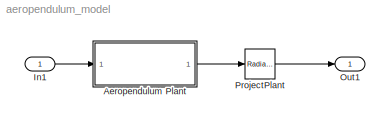
MODEL aeropendulum_model
KIND model
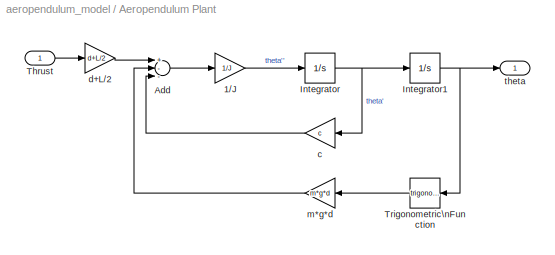
BLOCK [SubSystem] Aeropendulum Plant
  Ports = [1, 1]
  RequestExecContextInheritance = off
  SID = 1
  Variant = off
BLOCK [Gain] Aeropendulum Plant/1//J
  Gain = 1/J
  OutDataTypeStr = Inherit: Inherit via internal rule
  ParamDataTypeStr = Inherit: Inherit via internal rule
  SID = 3
  SaturateOnIntegerOverflow = off
BLOCK [Sum] Aeropendulum Plant/Add
  InputSameDT = off
  Inputs = +--
  OutDataTypeStr = Inherit: Inherit via internal rule
  Ports = [3, 1]
  SID = 4
  SaturateOnIntegerOverflow = off
BLOCK [Integrator] Aeropendulum Plant/Integrator
  Ports = [1, 1]
  SID = 5
BLOCK [Integrator] Aeropendulum Plant/Integrator1
  Ports = [1, 1]
  SID = 6
BLOCK [Inport] Aeropendulum Plant/Thrust
  IconDisplay = Port number
  SID = 2
BLOCK [Trigonometry] Aeropendulum Plant/Trigonometric\nFunction
  Ports = [1, 1]
  SID = 7
BLOCK [Gain] Aeropendulum Plant/c
  Gain = c
  OutDataTypeStr = Inherit: Inherit via internal rule
  ParamDataTypeStr = Inherit: Inherit via internal rule
  SID = 8
  SaturateOnIntegerOverflow = off
BLOCK [Gain] Aeropendulum Plant/d+L//2
  Gain = d+L/2
  OutDataTypeStr = Inherit: Inherit via internal rule
  ParamDataTypeStr = Inherit: Inherit via internal rule
  SID = 9
  SaturateOnIntegerOverflow = off
BLOCK [Gain] Aeropendulum Plant/m*g*d
  Gain = m*g*d
  OutDataTypeStr = Inherit: Inherit via internal rule
  ParamDataTypeStr = Inherit: Inherit via internal rule
  SID = 10
  SaturateOnIntegerOverflow = off
BLOCK [Outport] Aeropendulum Plant/theta
  IconDisplay = Port number
  SID = 11
BLOCK [Inport] In1
  IconDisplay = Port number
  SID = 13
BLOCK [Outport] Out1
  IconDisplay = Port number
  SID = 14
BLOCK [Reference] ProjectPlant  REF=simulink_extras/Transformations/Radians\nto Degrees
  Ports = [1, 1]
  SID = 12
  SourceBlock = simulink_extras/Transformations/Radians\nto Degrees
  SourceProductBaseCode = SL
  SourceProductName = Simulink
  SourceType = RadiansToDegrees
LINE Aeropendulum Plant/1//J:1 -> Aeropendulum Plant/Integrator:1
LINE Aeropendulum Plant/Add:1 -> Aeropendulum Plant/1//J:1
NET Aeropendulum Plant/Integrator1:1 -> Aeropendulum Plant/Trigonometric\nFunction:1, Aeropendulum Plant/theta:1
NET Aeropendulum Plant/Integrator:1 -> Aeropendulum Plant/Integrator1:1, Aeropendulum Plant/c:1
LINE Aeropendulum Plant/Thrust:1 -> Aeropendulum Plant/d+L//2:1
LINE Aeropendulum Plant/Trigonometric\nFunction:1 -> Aeropendulum Plant/m*g*d:1
LINE Aeropendulum Plant/c:1 -> Aeropendulum Plant/Add:3
LINE Aeropendulum Plant/d+L//2:1 -> Aeropendulum Plant/Add:1
LINE Aeropendulum Plant/m*g*d:1 -> Aeropendulum Plant/Add:2
LINE Aeropendulum Plant:1 -> ProjectPlant:1
LINE In1:1 -> Aeropendulum Plant:1
LINE ProjectPlant:1 -> Out1:1
note: NET lines group one-source signal fan-out (src -> all destinations, sorted); 1:1 wires keep LINE
